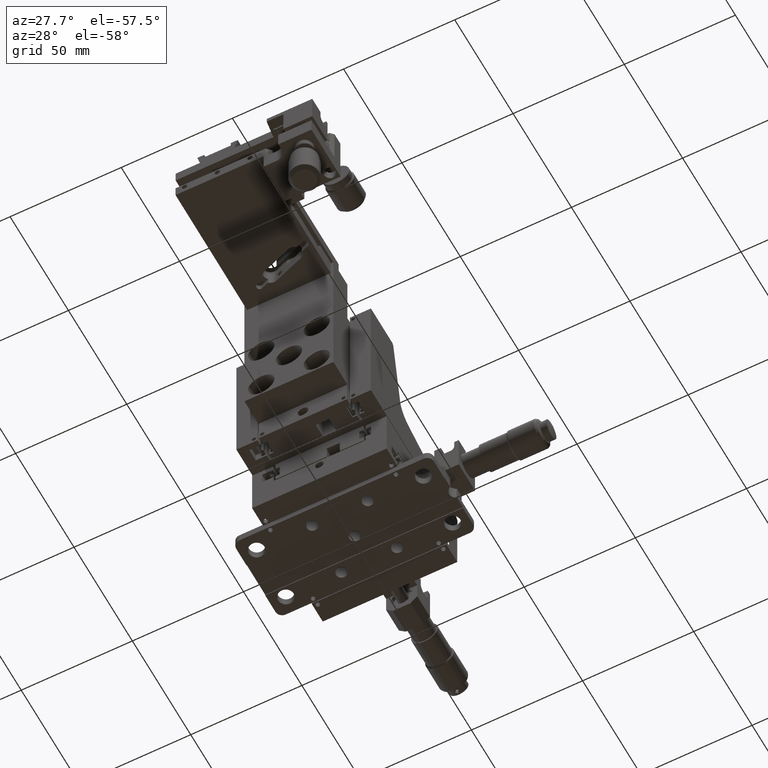
[diagram: clean part render]
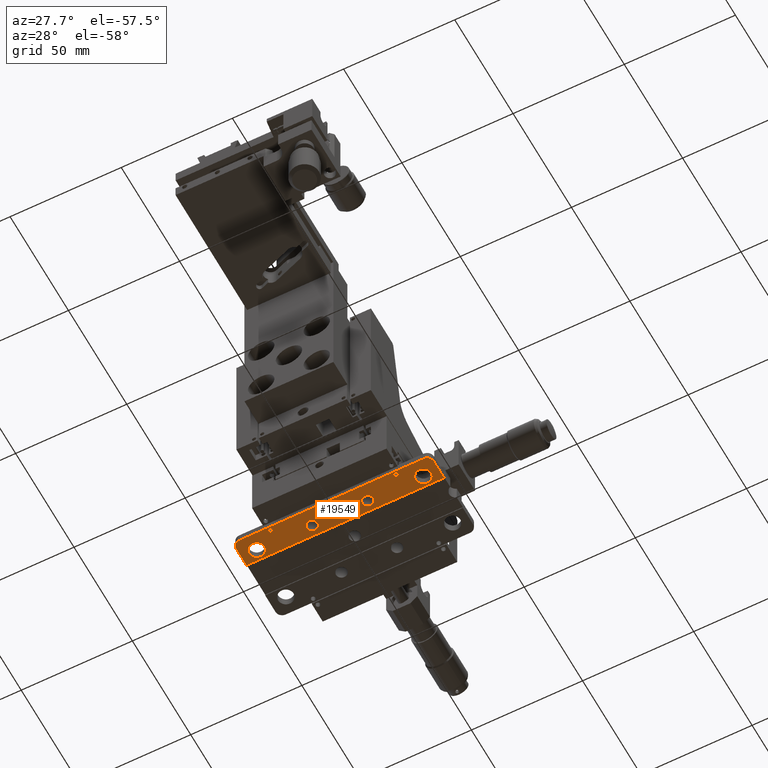
[diagram: same view with one face highlighted and labeled with its STEP entity id]
A machine part, auxiliary view. The second image highlights one B-rep face of the part: STEP entity #19549.
In plain terms, the highlighted planar face has unit normal (-0, 0, 1).
Its self-contained STEP definition (entity closure, byte-faithful):
#7301 = CARTESIAN_POINT ( 'NONE',  ( -10.00000000000000200, -12.50000000000000000, 0.0000000000000000000 ) ) ;
#7302 = CARTESIAN_POINT ( 'NONE',  ( 33.99999999999999300, -12.50000000000000000, 0.0000000000000000000 ) ) ;
#7325 = CIRCLE ( 'NONE', #7340, 3.500000000000003100 ) ;
#7340 = AXIS2_PLACEMENT_3D ( 'NONE', #7379, #7378, #7377 ) ;
#7347 = CARTESIAN_POINT ( 'NONE',  ( 41.00000000000000000, -12.50000000000000000, 0.0000000000000000000 ) ) ;
#7349 = CARTESIAN_POINT ( 'NONE',  ( 10.00000000000000200, -12.50000000000000000, 0.0000000000000000000 ) ) ;
#7350 = CARTESIAN_POINT ( 'NONE',  ( -15.00000000000000000, -12.50000000000000000, 0.0000000000000000000 ) ) ;
#7352 = CARTESIAN_POINT ( 'NONE',  ( 15.00000000000000000, -12.50000000000000000, 0.0000000000000000000 ) ) ;
#7353 = CIRCLE ( 'NONE', #7405, 3.500000000000003100 ) ;
#7366 = CARTESIAN_POINT ( 'NONE',  ( -33.99999999999999300, -12.50000000000000000, 0.0000000000000000000 ) ) ;
#7367 = CIRCLE ( 'NONE', #7448, 3.500000000000003100 ) ;
#7377 = DIRECTION ( 'NONE',  ( 1.000000000000000000, 0.0000000000000000000, 0.0000000000000000000 ) ) ;
#7378 = DIRECTION ( 'NONE',  ( 0.0000000000000000000, 0.0000000000000000000, 1.000000000000000000 ) ) ;
#7379 = CARTESIAN_POINT ( 'NONE',  ( 37.50000000000000000, -12.50000000000000000, 0.0000000000000000000 ) ) ;
#7383 = CARTESIAN_POINT ( 'NONE',  ( 37.50000000000000000, -12.50000000000000000, 0.0000000000000000000 ) ) ;
#7384 = CARTESIAN_POINT ( 'NONE',  ( -12.50000000000000000, -12.50000000000000000, 0.0000000000000000000 ) ) ;
#7385 = DIRECTION ( 'NONE',  ( 0.0000000000000000000, 0.0000000000000000000, 1.000000000000000000 ) ) ;
#7386 = CIRCLE ( 'NONE', #7407, 2.499999999999998700 ) ;
#7387 = CIRCLE ( 'NONE', #7441, 2.499999999999998700 ) ;
#7400 = DIRECTION ( 'NONE',  ( 1.000000000000000000, 0.0000000000000000000, 0.0000000000000000000 ) ) ;
#7402 = DIRECTION ( 'NONE',  ( -1.000000000000000000, 0.0000000000000000000, 0.0000000000000000000 ) ) ;
#7403 = DIRECTION ( 'NONE',  ( 0.0000000000000000000, 0.0000000000000000000, 1.000000000000000000 ) ) ;
#7404 = CARTESIAN_POINT ( 'NONE',  ( -37.50000000000000000, -12.50000000000000000, 0.0000000000000000000 ) ) ;
#7405 = AXIS2_PLACEMENT_3D ( 'NONE', #7404, #7403, #7402 ) ;
#7407 = AXIS2_PLACEMENT_3D ( 'NONE', #7384, #7438, #7437 ) ;
#7415 = CARTESIAN_POINT ( 'NONE',  ( -41.00000000000000000, -12.50000000000000000, 0.0000000000000000000 ) ) ;
#7417 = AXIS2_PLACEMENT_3D ( 'NONE', #7474, #7419, #7465 ) ;
#7419 = DIRECTION ( 'NONE',  ( -0.0000000000000000000, 0.0000000000000000000, 1.000000000000000000 ) ) ;
#7431 = DIRECTION ( 'NONE',  ( 1.000000000000000000, 0.0000000000000000000, 0.0000000000000000000 ) ) ;
#7432 = DIRECTION ( 'NONE',  ( -0.0000000000000000000, 0.0000000000000000000, 1.000000000000000000 ) ) ;
#7433 = CIRCLE ( 'NONE', #7477, 2.499999999999998700 ) ;
#7436 = CARTESIAN_POINT ( 'NONE',  ( 12.50000000000000000, -12.50000000000000000, 0.0000000000000000000 ) ) ;
#7437 = DIRECTION ( 'NONE',  ( 1.000000000000000000, 0.0000000000000000000, 0.0000000000000000000 ) ) ;
#7438 = DIRECTION ( 'NONE',  ( -0.0000000000000000000, 0.0000000000000000000, 1.000000000000000000 ) ) ;
#7441 = AXIS2_PLACEMENT_3D ( 'NONE', #7436, #7432, #7431 ) ;
#7448 = AXIS2_PLACEMENT_3D ( 'NONE', #7383, #7385, #7400 ) ;
#7451 = DIRECTION ( 'NONE',  ( 1.000000000000000000, 0.0000000000000000000, 0.0000000000000000000 ) ) ;
#7452 = DIRECTION ( 'NONE',  ( -0.0000000000000000000, 0.0000000000000000000, 1.000000000000000000 ) ) ;
#7464 = CARTESIAN_POINT ( 'NONE',  ( 12.50000000000000000, -12.50000000000000000, 0.0000000000000000000 ) ) ;
#7465 = DIRECTION ( 'NONE',  ( 1.000000000000000000, 0.0000000000000000000, 0.0000000000000000000 ) ) ;
#7473 = CIRCLE ( 'NONE', #7417, 2.499999999999998700 ) ;
#7474 = CARTESIAN_POINT ( 'NONE',  ( -12.50000000000000000, -12.50000000000000000, 0.0000000000000000000 ) ) ;
#7477 = AXIS2_PLACEMENT_3D ( 'NONE', #7464, #7452, #7451 ) ;
#7515 = DIRECTION ( 'NONE',  ( -1.000000000000000000, 0.0000000000000000000, 0.0000000000000000000 ) ) ;
#7516 = DIRECTION ( 'NONE',  ( 0.0000000000000000000, 0.0000000000000000000, 1.000000000000000000 ) ) ;
#7517 = AXIS2_PLACEMENT_3D ( 'NONE', #7522, #7516, #7515 ) ;
#7522 = CARTESIAN_POINT ( 'NONE',  ( -37.50000000000000000, -12.50000000000000000, 0.0000000000000000000 ) ) ;
#7534 = CIRCLE ( 'NONE', #7517, 3.500000000000003100 ) ;
#7606 = CARTESIAN_POINT ( 'NONE',  ( -44.44999999999999600, -16.79999999999999400, 0.0000000000000000000 ) ) ;
#7617 = CIRCLE ( 'NONE', #7658, 3.000000000000002700 ) ;
#7624 = CARTESIAN_POINT ( 'NONE',  ( 41.45000000000001000, -19.80000000000000100, 0.0000000000000000000 ) ) ;
#7646 = DIRECTION ( 'NONE',  ( 1.000000000000000000, 0.0000000000000000000, 0.0000000000000000000 ) ) ;
#7647 = VECTOR ( 'NONE', #7646, 1000.000000000000000 ) ;
#7653 = CARTESIAN_POINT ( 'NONE',  ( -44.44999999999999600, -19.80000000000000100, 0.0000000000000000000 ) ) ;
#7654 = LINE ( 'NONE', #7653, #7647 ) ;
#7655 = DIRECTION ( 'NONE',  ( 1.000000000000000000, 0.0000000000000000000, 0.0000000000000000000 ) ) ;
#7656 = DIRECTION ( 'NONE',  ( 0.0000000000000000000, -0.0000000000000000000, -1.000000000000000000 ) ) ;
#7657 = CARTESIAN_POINT ( 'NONE',  ( -41.44999999999999600, -16.80000000000000100, 0.0000000000000000000 ) ) ;
#7658 = AXIS2_PLACEMENT_3D ( 'NONE', #7657, #7656, #7655 ) ;
#7663 = CARTESIAN_POINT ( 'NONE',  ( -41.44999999999999600, -19.80000000000000100, 0.0000000000000000000 ) ) ;
#7694 = AXIS2_PLACEMENT_3D ( 'NONE', #7708, #7746, #7745 ) ;
#7695 = CARTESIAN_POINT ( 'NONE',  ( 44.45000000000001000, -16.79999999999999400, 0.0000000000000000000 ) ) ;
#7708 = CARTESIAN_POINT ( 'NONE',  ( 41.45000000000001000, -16.80000000000000400, 0.0000000000000000000 ) ) ;
#7714 = DIRECTION ( 'NONE',  ( -0.0000000000000000000, 1.000000000000000000, -0.0000000000000000000 ) ) ;
#7715 = VECTOR ( 'NONE', #7714, 1000.000000000000000 ) ;
#7716 = CARTESIAN_POINT ( 'NONE',  ( 44.45000000000001000, 19.80000000000000100, 0.0000000000000000000 ) ) ;
#7717 = LINE ( 'NONE', #7716, #7715 ) ;
#7736 = CARTESIAN_POINT ( 'NONE',  ( -44.44999999999999600, -8.000000000000000000, -1.543708069886146400E-015 ) ) ;
#7741 = CARTESIAN_POINT ( 'NONE',  ( 44.45000000000001000, -8.000000000000000000, -1.543708069886146400E-015 ) ) ;
#7745 = DIRECTION ( 'NONE',  ( 1.000000000000000000, 0.0000000000000000000, 0.0000000000000000000 ) ) ;
#7746 = DIRECTION ( 'NONE',  ( 0.0000000000000000000, -0.0000000000000000000, -1.000000000000000000 ) ) ;
#7757 = CIRCLE ( 'NONE', #7694, 3.000000000000002700 ) ;
#7816 = LINE ( 'NONE', #7847, #7846 ) ;
#7830 = DIRECTION ( 'NONE',  ( 1.000000000000000000, -0.0000000000000000000, -0.0000000000000000000 ) ) ;
#7831 = VECTOR ( 'NONE', #7830, 1000.000000000000000 ) ;
#7843 = CARTESIAN_POINT ( 'NONE',  ( -44.44999999999999600, -8.000000000000000000, -1.543708069886146400E-015 ) ) ;
#7845 = DIRECTION ( 'NONE',  ( 1.752245935330108400E-016, -1.000000000000000000, 0.0000000000000000000 ) ) ;
#7846 = VECTOR ( 'NONE', #7845, 1000.000000000000000 ) ;
#7847 = CARTESIAN_POINT ( 'NONE',  ( -44.45000000000000300, 19.80000000000000100, 0.0000000000000000000 ) ) ;
#7851 = LINE ( 'NONE', #7843, #7831 ) ;
#8557 = CARTESIAN_POINT ( 'NONE',  ( 28.25000000000000000, -18.30000000000000100, -1.734723475976807100E-015 ) ) ;
#8581 = FACE_BOUND ( 'NONE', #19616, .T. ) ;
#8586 = DIRECTION ( 'NONE',  ( 1.000000000000000000, 0.0000000000000000000, 0.0000000000000000000 ) ) ;
#8587 = DIRECTION ( 'NONE',  ( 0.0000000000000000000, 0.0000000000000000000, 1.000000000000000000 ) ) ;
#8588 = CARTESIAN_POINT ( 'NONE',  ( -28.25000000000000000, -18.30000000000000100, -1.734723475976807100E-015 ) ) ;
#8589 = AXIS2_PLACEMENT_3D ( 'NONE', #8588, #8587, #8586 ) ;
#8593 = DIRECTION ( 'NONE',  ( 1.000000000000000000, 0.0000000000000000000, 0.0000000000000000000 ) ) ;
#8594 = DIRECTION ( 'NONE',  ( -0.0000000000000000000, 0.0000000000000000000, 1.000000000000000000 ) ) ;
#8595 = CARTESIAN_POINT ( 'NONE',  ( -44.44999999999999600, -19.80000000000000100, 0.0000000000000000000 ) ) ;
#8596 = AXIS2_PLACEMENT_3D ( 'NONE', #8595, #8594, #8593 ) ;
#8597 = CIRCLE ( 'NONE', #8589, 1.000000000000000900 ) ;
#8598 = PLANE ( 'NONE',  #8596 ) ;
#8599 = FACE_OUTER_BOUND ( 'NONE', #19608, .T. ) ;
#8600 = FACE_BOUND ( 'NONE', #19619, .T. ) ;
#8601 = DIRECTION ( 'NONE',  ( -1.000000000000000000, 0.0000000000000000000, 0.0000000000000000000 ) ) ;
#8602 = DIRECTION ( 'NONE',  ( 0.0000000000000000000, 0.0000000000000000000, 1.000000000000000000 ) ) ;
#8603 = AXIS2_PLACEMENT_3D ( 'NONE', #8557, #8602, #8601 ) ;
#8604 = CIRCLE ( 'NONE', #8603, 1.000000000000000900 ) ;
#8605 = FACE_BOUND ( 'NONE', #19540, .T. ) ;
#8608 = FACE_BOUND ( 'NONE', #19543, .T. ) ;
#8609 = FACE_BOUND ( 'NONE', #19559, .T. ) ;
#8610 = FACE_BOUND ( 'NONE', #19614, .T. ) ;
#14433 = VERTEX_POINT ( 'NONE', #24519 ) ;
#14446 = VERTEX_POINT ( 'NONE', #24553 ) ;
#14447 = EDGE_CURVE ( 'NONE', #14446, #14433, #24506, .T. ) ;
#14458 = EDGE_CURVE ( 'NONE', #14466, #14467, #24525, .T. ) ;
#14466 = VERTEX_POINT ( 'NONE', #24575 ) ;
#14467 = VERTEX_POINT ( 'NONE', #24581 ) ;
#18756 = VERTEX_POINT ( 'NONE', #7301 ) ;
#18762 = VERTEX_POINT ( 'NONE', #7347 ) ;
#18763 = VERTEX_POINT ( 'NONE', #7302 ) ;
#18764 = VERTEX_POINT ( 'NONE', #7349 ) ;
#18775 = EDGE_CURVE ( 'NONE', #18763, #18762, #7325, .T. ) ;
#18785 = VERTEX_POINT ( 'NONE', #7366 ) ;
#18791 = VERTEX_POINT ( 'NONE', #7352 ) ;
#18793 = VERTEX_POINT ( 'NONE', #7415 ) ;
#18794 = EDGE_CURVE ( 'NONE', #18793, #18785, #7353, .T. ) ;
#18796 = VERTEX_POINT ( 'NONE', #7350 ) ;
#18805 = EDGE_CURVE ( 'NONE', #18762, #18763, #7367, .T. ) ;
#18810 = EDGE_CURVE ( 'NONE', #18756, #18796, #7386, .T. ) ;
#18812 = EDGE_CURVE ( 'NONE', #18791, #18764, #7387, .T. ) ;
#18827 = EDGE_CURVE ( 'NONE', #18796, #18756, #7473, .T. ) ;
#18832 = EDGE_CURVE ( 'NONE', #18764, #18791, #7433, .T. ) ;
#18869 = EDGE_CURVE ( 'NONE', #18785, #18793, #7534, .T. ) ;
#18918 = VERTEX_POINT ( 'NONE', #7606 ) ;
#18919 = VERTEX_POINT ( 'NONE', #7624 ) ;
#18920 = VERTEX_POINT ( 'NONE', #7663 ) ;
#18921 = EDGE_CURVE ( 'NONE', #18920, #18918, #7617, .T. ) ;
#18926 = EDGE_CURVE ( 'NONE', #18920, #18919, #7654, .T. ) ;
#18955 = EDGE_CURVE ( 'NONE', #18975, #18981, #7717, .T. ) ;
#18972 = EDGE_CURVE ( 'NONE', #18975, #18919, #7757, .T. ) ;
#18975 = VERTEX_POINT ( 'NONE', #7695 ) ;
#18981 = VERTEX_POINT ( 'NONE', #7741 ) ;
#18984 = VERTEX_POINT ( 'NONE', #7736 ) ;
#19024 = EDGE_CURVE ( 'NONE', #18984, #18918, #7816, .T. ) ;
#19030 = EDGE_CURVE ( 'NONE', #18984, #18981, #7851, .T. ) ;
#19539 = ORIENTED_EDGE ( 'NONE', *, *, #18827, .T. ) ;
#19540 = EDGE_LOOP ( 'NONE', ( #19620, #19606 ) ) ;
#19543 = EDGE_LOOP ( 'NONE', ( #19544, #19547 ) ) ;
#19544 = ORIENTED_EDGE ( 'NONE', *, *, #19548, .T. ) ;
#19545 = ORIENTED_EDGE ( 'NONE', *, *, #18921, .T. ) ;
#19547 = ORIENTED_EDGE ( 'NONE', *, *, #14447, .T. ) ;
#19548 = EDGE_CURVE ( 'NONE', #14433, #14446, #8604, .T. ) ;
#19549 = ADVANCED_FACE ( 'NONE', ( #8608, #8610, #8581, #8609, #8605, #8600, #8599 ), #8598, .F. ) ;
#19550 = ORIENTED_EDGE ( 'NONE', *, *, #18812, .T. ) ;
#19552 = EDGE_CURVE ( 'NONE', #14467, #14466, #8597, .T. ) ;
#19559 = EDGE_LOOP ( 'NONE', ( #19617, #19539 ) ) ;
#19593 = ORIENTED_EDGE ( 'NONE', *, *, #18926, .F. ) ;
#19604 = ORIENTED_EDGE ( 'NONE', *, *, #19030, .T. ) ;
#19605 = ORIENTED_EDGE ( 'NONE', *, *, #18794, .T. ) ;
#19606 = ORIENTED_EDGE ( 'NONE', *, *, #18805, .T. ) ;
#19607 = ORIENTED_EDGE ( 'NONE', *, *, #19024, .F. ) ;
#19608 = EDGE_LOOP ( 'NONE', ( #19607, #19604, #19610, #19609, #19593, #19545 ) ) ;
#19609 = ORIENTED_EDGE ( 'NONE', *, *, #18972, .T. ) ;
#19610 = ORIENTED_EDGE ( 'NONE', *, *, #18955, .F. ) ;
#19612 = ORIENTED_EDGE ( 'NONE', *, *, #14458, .T. ) ;
#19613 = ORIENTED_EDGE ( 'NONE', *, *, #18832, .T. ) ;
#19614 = EDGE_LOOP ( 'NONE', ( #19615, #19612 ) ) ;
#19615 = ORIENTED_EDGE ( 'NONE', *, *, #19552, .T. ) ;
#19616 = EDGE_LOOP ( 'NONE', ( #19550, #19613 ) ) ;
#19617 = ORIENTED_EDGE ( 'NONE', *, *, #18810, .T. ) ;
#19618 = ORIENTED_EDGE ( 'NONE', *, *, #18869, .T. ) ;
#19619 = EDGE_LOOP ( 'NONE', ( #19605, #19618 ) ) ;
#19620 = ORIENTED_EDGE ( 'NONE', *, *, #18775, .T. ) ;
#24498 = AXIS2_PLACEMENT_3D ( 'NONE', #24550, #24547, #24546 ) ;
#24506 = CIRCLE ( 'NONE', #24498, 1.000000000000000900 ) ;
#24519 = CARTESIAN_POINT ( 'NONE',  ( 29.25000000000000000, -18.30000000000000100, -1.734723475976807100E-015 ) ) ;
#24525 = CIRCLE ( 'NONE', #24555, 1.000000000000000900 ) ;
#24539 = CARTESIAN_POINT ( 'NONE',  ( -28.25000000000000000, -18.30000000000000100, -1.734723475976807100E-015 ) ) ;
#24546 = DIRECTION ( 'NONE',  ( -1.000000000000000000, 0.0000000000000000000, 0.0000000000000000000 ) ) ;
#24547 = DIRECTION ( 'NONE',  ( 0.0000000000000000000, 0.0000000000000000000, 1.000000000000000000 ) ) ;
#24550 = CARTESIAN_POINT ( 'NONE',  ( 28.25000000000000000, -18.30000000000000100, -1.734723475976807100E-015 ) ) ;
#24553 = CARTESIAN_POINT ( 'NONE',  ( 27.25000000000000000, -18.30000000000000100, -1.734723475976807100E-015 ) ) ;
#24555 = AXIS2_PLACEMENT_3D ( 'NONE', #24539, #24580, #24579 ) ;
#24575 = CARTESIAN_POINT ( 'NONE',  ( -29.25000000000000000, -18.30000000000000100, -1.734723475976807100E-015 ) ) ;
#24579 = DIRECTION ( 'NONE',  ( 1.000000000000000000, 0.0000000000000000000, 0.0000000000000000000 ) ) ;
#24580 = DIRECTION ( 'NONE',  ( 0.0000000000000000000, 0.0000000000000000000, 1.000000000000000000 ) ) ;
#24581 = CARTESIAN_POINT ( 'NONE',  ( -27.25000000000000000, -18.30000000000000100, -1.734723475976807100E-015 ) ) ;